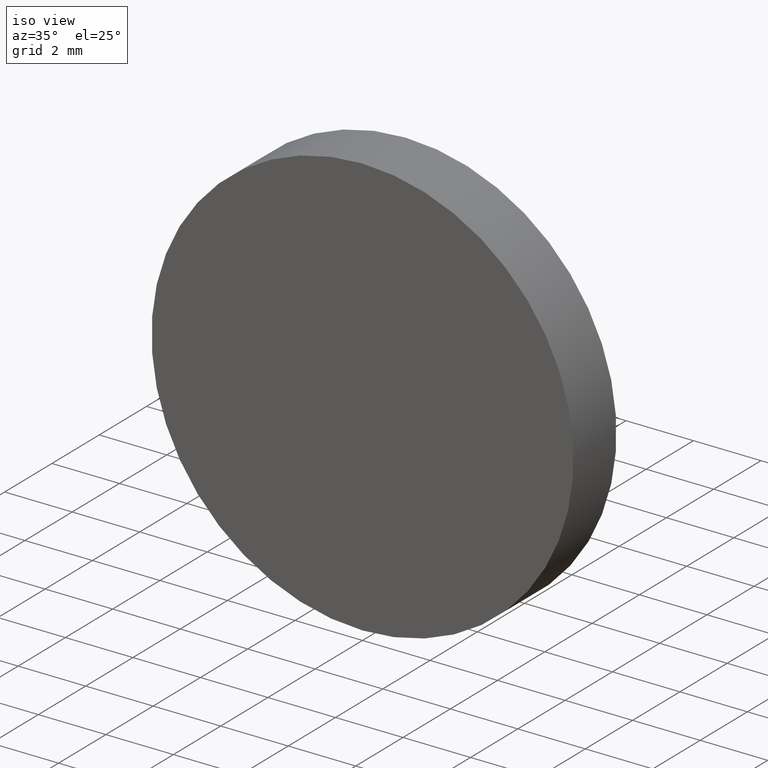
[diagram: clean part render]
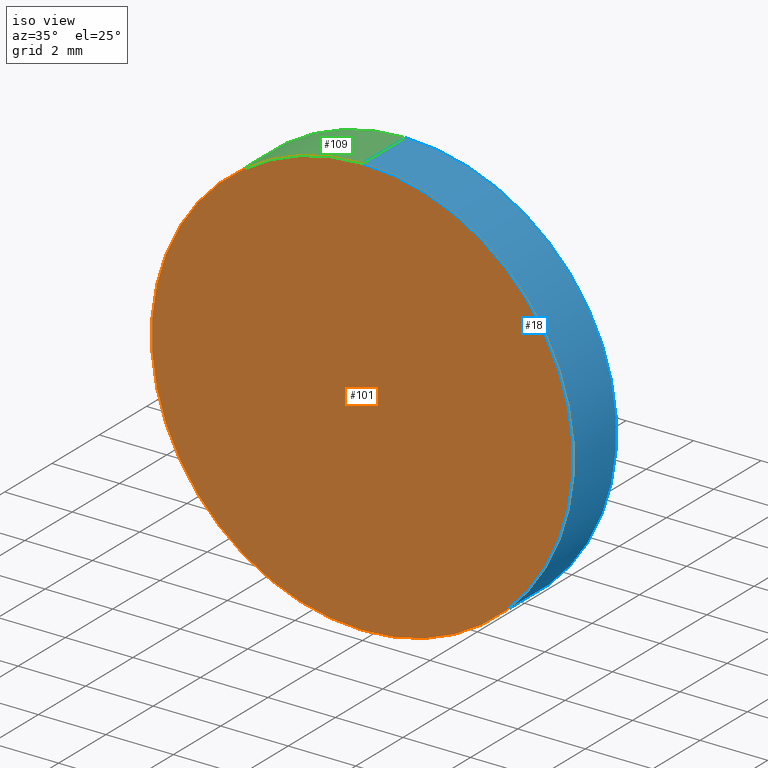
[diagram: same view with three faces highlighted in distinct colors, each labeled with its STEP entity id]
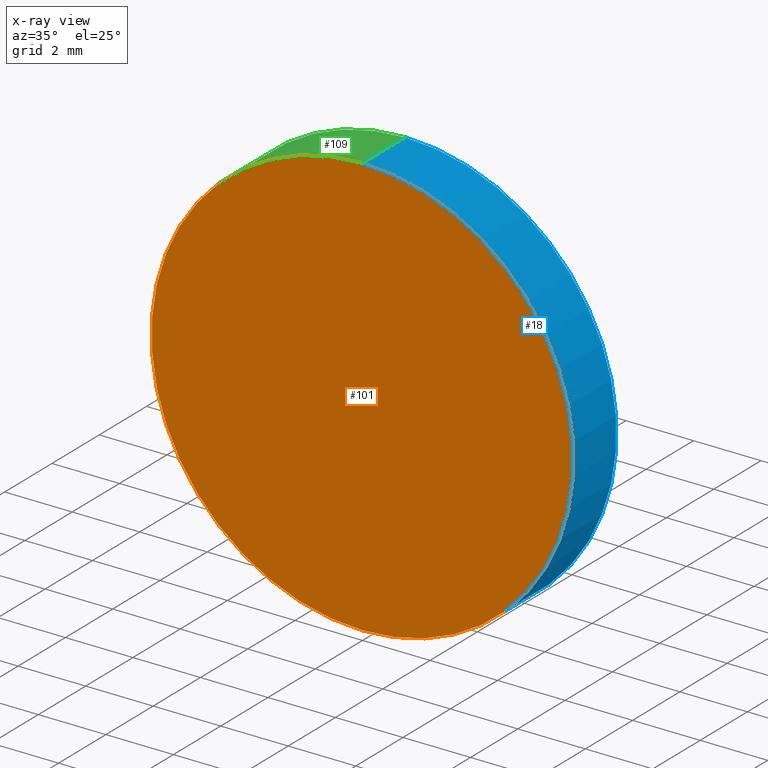
[diagram: x-ray of the same camera — body ghosted, the three highlighted faces saturated]
A machine part, iso view with three faces highlighted in distinct colors.
The next image is the same camera in x-ray (body ghosted, the three faces saturated) — at least one of them is partly hidden behind the body in this view.
Their STEP definitions:

[orange] entity #101 — the highlighted planar face has unit normal (0, 1, 0).
#5 = CARTESIAN_POINT ( 'NONE',  ( 0.0000000000000000000, 0.0000000000000000000, 0.0000000000000000000 ) ) ;
#12 = VERTEX_POINT ( 'NONE', #41 ) ;
#17 = DIRECTION ( 'NONE',  ( 0.0000000000000000000, -0.0000000000000000000, 1.000000000000000000 ) ) ;
#21 = EDGE_CURVE ( 'NONE', #12, #30, #28, .T. ) ;
#25 = AXIS2_PLACEMENT_3D ( 'NONE', #5, #78, #135 ) ;
#28 = CIRCLE ( 'NONE', #67, 6.250000000000000000 ) ;
#30 = VERTEX_POINT ( 'NONE', #47 ) ;
#35 = PLANE ( 'NONE',  #126 ) ;
#41 = CARTESIAN_POINT ( 'NONE',  ( 7.654042494670957600E-016, 0.0000000000000000000, 6.250000000000000000 ) ) ;
#47 = CARTESIAN_POINT ( 'NONE',  ( 0.0000000000000000000, 0.0000000000000000000, -6.250000000000000000 ) ) ;
#49 = EDGE_CURVE ( 'NONE', #30, #12, #81, .T. ) ;
#61 = DIRECTION ( 'NONE',  ( 0.0000000000000000000, 1.000000000000000000, 0.0000000000000000000 ) ) ;
#63 = ORIENTED_EDGE ( 'NONE', *, *, #21, .F. ) ;
#65 = FACE_OUTER_BOUND ( 'NONE', #113, .T. ) ;
#67 = AXIS2_PLACEMENT_3D ( 'NONE', #127, #61, #118 ) ;
#68 = ORIENTED_EDGE ( 'NONE', *, *, #49, .F. ) ;
#71 = CARTESIAN_POINT ( 'NONE',  ( 0.0000000000000000000, 0.0000000000000000000, 0.0000000000000000000 ) ) ;
#78 = DIRECTION ( 'NONE',  ( 0.0000000000000000000, 1.000000000000000000, 0.0000000000000000000 ) ) ;
#81 = CIRCLE ( 'NONE', #25, 6.250000000000000000 ) ;
#99 = DIRECTION ( 'NONE',  ( 0.0000000000000000000, 1.000000000000000000, 0.0000000000000000000 ) ) ;
#101 = ADVANCED_FACE ( 'NONE', ( #65 ), #35, .F. ) ;
#113 = EDGE_LOOP ( 'NONE', ( #68, #63 ) ) ;
#118 = DIRECTION ( 'NONE',  ( 0.0000000000000000000, 0.0000000000000000000, 1.000000000000000000 ) ) ;
#126 = AXIS2_PLACEMENT_3D ( 'NONE', #71, #99, #17 ) ;
#127 = CARTESIAN_POINT ( 'NONE',  ( 0.0000000000000000000, 0.0000000000000000000, 0.0000000000000000000 ) ) ;
#135 = DIRECTION ( 'NONE',  ( 0.0000000000000000000, 0.0000000000000000000, 1.000000000000000000 ) ) ;

[blue] entity #18 — the highlighted cylindrical surface (partial cylindrical patch) has radius 6.25 mm, axis along (-0, -1, -0).
#1 = EDGE_CURVE ( 'NONE', #84, #53, #130, .T. ) ;
#2 = AXIS2_PLACEMENT_3D ( 'NONE', #100, #20, #91 ) ;
#8 = CARTESIAN_POINT ( 'NONE',  ( 0.0000000000000000000, 1.820000000000000100, -6.250000000000000000 ) ) ;
#11 = EDGE_CURVE ( 'NONE', #84, #12, #64, .T. ) ;
#12 = VERTEX_POINT ( 'NONE', #41 ) ;
#18 = ADVANCED_FACE ( 'NONE', ( #131 ), #86, .T. ) ;
#19 = ORIENTED_EDGE ( 'NONE', *, *, #21, .T. ) ;
#20 = DIRECTION ( 'NONE',  ( 0.0000000000000000000, 1.000000000000000000, 0.0000000000000000000 ) ) ;
#21 = EDGE_CURVE ( 'NONE', #12, #30, #28, .T. ) ;
#26 = ORIENTED_EDGE ( 'NONE', *, *, #11, .T. ) ;
#28 = CIRCLE ( 'NONE', #67, 6.250000000000000000 ) ;
#30 = VERTEX_POINT ( 'NONE', #47 ) ;
#38 = DIRECTION ( 'NONE',  ( -0.0000000000000000000, -1.000000000000000000, -0.0000000000000000000 ) ) ;
#39 = EDGE_CURVE ( 'NONE', #53, #30, #56, .T. ) ;
#41 = CARTESIAN_POINT ( 'NONE',  ( 7.654042494670957600E-016, 0.0000000000000000000, 6.250000000000000000 ) ) ;
#47 = CARTESIAN_POINT ( 'NONE',  ( 0.0000000000000000000, 0.0000000000000000000, -6.250000000000000000 ) ) ;
#52 = ORIENTED_EDGE ( 'NONE', *, *, #39, .F. ) ;
#53 = VERTEX_POINT ( 'NONE', #8 ) ;
#56 = LINE ( 'NONE', #137, #110 ) ;
#60 = ORIENTED_EDGE ( 'NONE', *, *, #1, .F. ) ;
#61 = DIRECTION ( 'NONE',  ( 0.0000000000000000000, 1.000000000000000000, 0.0000000000000000000 ) ) ;
#62 = DIRECTION ( 'NONE',  ( 0.0000000000000000000, 0.0000000000000000000, -1.000000000000000000 ) ) ;
#64 = LINE ( 'NONE', #95, #139 ) ;
#67 = AXIS2_PLACEMENT_3D ( 'NONE', #127, #61, #118 ) ;
#84 = VERTEX_POINT ( 'NONE', #89 ) ;
#85 = AXIS2_PLACEMENT_3D ( 'NONE', #90, #38, #62 ) ;
#86 = CYLINDRICAL_SURFACE ( 'NONE', #85, 6.250000000000000000 ) ;
#89 = CARTESIAN_POINT ( 'NONE',  ( 7.654042494670957600E-016, 1.820000000000000100, 6.250000000000000000 ) ) ;
#90 = CARTESIAN_POINT ( 'NONE',  ( 0.0000000000000000000, 1.820000000000000100, 0.0000000000000000000 ) ) ;
#91 = DIRECTION ( 'NONE',  ( 0.0000000000000000000, 0.0000000000000000000, 1.000000000000000000 ) ) ;
#95 = CARTESIAN_POINT ( 'NONE',  ( 7.654042494670957600E-016, 1.820000000000000100, 6.250000000000000000 ) ) ;
#100 = CARTESIAN_POINT ( 'NONE',  ( 0.0000000000000000000, 1.820000000000000100, 0.0000000000000000000 ) ) ;
#105 = EDGE_LOOP ( 'NONE', ( #60, #26, #19, #52 ) ) ;
#108 = DIRECTION ( 'NONE',  ( -0.0000000000000000000, -1.000000000000000000, -0.0000000000000000000 ) ) ;
#110 = VECTOR ( 'NONE', #108, 1000.000000000000000 ) ;
#118 = DIRECTION ( 'NONE',  ( 0.0000000000000000000, 0.0000000000000000000, 1.000000000000000000 ) ) ;
#120 = DIRECTION ( 'NONE',  ( -0.0000000000000000000, -1.000000000000000000, -0.0000000000000000000 ) ) ;
#127 = CARTESIAN_POINT ( 'NONE',  ( 0.0000000000000000000, 0.0000000000000000000, 0.0000000000000000000 ) ) ;
#130 = CIRCLE ( 'NONE', #2, 6.250000000000000000 ) ;
#131 = FACE_OUTER_BOUND ( 'NONE', #105, .T. ) ;
#137 = CARTESIAN_POINT ( 'NONE',  ( 0.0000000000000000000, 1.820000000000000100, -6.250000000000000000 ) ) ;
#139 = VECTOR ( 'NONE', #120, 1000.000000000000000 ) ;

[green] entity #109 — the highlighted cylindrical surface (partial cylindrical patch) has radius 6.25 mm, axis along (-0, -1, -0).
#5 = CARTESIAN_POINT ( 'NONE',  ( 0.0000000000000000000, 0.0000000000000000000, 0.0000000000000000000 ) ) ;
#8 = CARTESIAN_POINT ( 'NONE',  ( 0.0000000000000000000, 1.820000000000000100, -6.250000000000000000 ) ) ;
#11 = EDGE_CURVE ( 'NONE', #84, #12, #64, .T. ) ;
#12 = VERTEX_POINT ( 'NONE', #41 ) ;
#23 = CIRCLE ( 'NONE', #93, 6.250000000000000000 ) ;
#25 = AXIS2_PLACEMENT_3D ( 'NONE', #5, #78, #135 ) ;
#30 = VERTEX_POINT ( 'NONE', #47 ) ;
#36 = ORIENTED_EDGE ( 'NONE', *, *, #49, .T. ) ;
#39 = EDGE_CURVE ( 'NONE', #53, #30, #56, .T. ) ;
#41 = CARTESIAN_POINT ( 'NONE',  ( 7.654042494670957600E-016, 0.0000000000000000000, 6.250000000000000000 ) ) ;
#45 = DIRECTION ( 'NONE',  ( 0.0000000000000000000, 1.000000000000000000, 0.0000000000000000000 ) ) ;
#46 = DIRECTION ( 'NONE',  ( 0.0000000000000000000, 0.0000000000000000000, -1.000000000000000000 ) ) ;
#47 = CARTESIAN_POINT ( 'NONE',  ( 0.0000000000000000000, 0.0000000000000000000, -6.250000000000000000 ) ) ;
#49 = EDGE_CURVE ( 'NONE', #30, #12, #81, .T. ) ;
#50 = ORIENTED_EDGE ( 'NONE', *, *, #83, .F. ) ;
#53 = VERTEX_POINT ( 'NONE', #8 ) ;
#56 = LINE ( 'NONE', #137, #110 ) ;
#59 = DIRECTION ( 'NONE',  ( -0.0000000000000000000, -1.000000000000000000, -0.0000000000000000000 ) ) ;
#64 = LINE ( 'NONE', #95, #139 ) ;
#78 = DIRECTION ( 'NONE',  ( 0.0000000000000000000, 1.000000000000000000, 0.0000000000000000000 ) ) ;
#79 = ORIENTED_EDGE ( 'NONE', *, *, #39, .T. ) ;
#81 = CIRCLE ( 'NONE', #25, 6.250000000000000000 ) ;
#82 = ORIENTED_EDGE ( 'NONE', *, *, #11, .F. ) ;
#83 = EDGE_CURVE ( 'NONE', #53, #84, #23, .T. ) ;
#84 = VERTEX_POINT ( 'NONE', #89 ) ;
#88 = CARTESIAN_POINT ( 'NONE',  ( 0.0000000000000000000, 1.820000000000000100, 0.0000000000000000000 ) ) ;
#89 = CARTESIAN_POINT ( 'NONE',  ( 7.654042494670957600E-016, 1.820000000000000100, 6.250000000000000000 ) ) ;
#92 = FACE_OUTER_BOUND ( 'NONE', #98, .T. ) ;
#93 = AXIS2_PLACEMENT_3D ( 'NONE', #117, #45, #107 ) ;
#95 = CARTESIAN_POINT ( 'NONE',  ( 7.654042494670957600E-016, 1.820000000000000100, 6.250000000000000000 ) ) ;
#98 = EDGE_LOOP ( 'NONE', ( #82, #50, #79, #36 ) ) ;
#104 = AXIS2_PLACEMENT_3D ( 'NONE', #88, #59, #46 ) ;
#107 = DIRECTION ( 'NONE',  ( 0.0000000000000000000, 0.0000000000000000000, 1.000000000000000000 ) ) ;
#108 = DIRECTION ( 'NONE',  ( -0.0000000000000000000, -1.000000000000000000, -0.0000000000000000000 ) ) ;
#109 = ADVANCED_FACE ( 'NONE', ( #92 ), #133, .T. ) ;
#110 = VECTOR ( 'NONE', #108, 1000.000000000000000 ) ;
#117 = CARTESIAN_POINT ( 'NONE',  ( 0.0000000000000000000, 1.820000000000000100, 0.0000000000000000000 ) ) ;
#120 = DIRECTION ( 'NONE',  ( -0.0000000000000000000, -1.000000000000000000, -0.0000000000000000000 ) ) ;
#133 = CYLINDRICAL_SURFACE ( 'NONE', #104, 6.250000000000000000 ) ;
#135 = DIRECTION ( 'NONE',  ( 0.0000000000000000000, 0.0000000000000000000, 1.000000000000000000 ) ) ;
#137 = CARTESIAN_POINT ( 'NONE',  ( 0.0000000000000000000, 1.820000000000000100, -6.250000000000000000 ) ) ;
#139 = VECTOR ( 'NONE', #120, 1000.000000000000000 ) ;